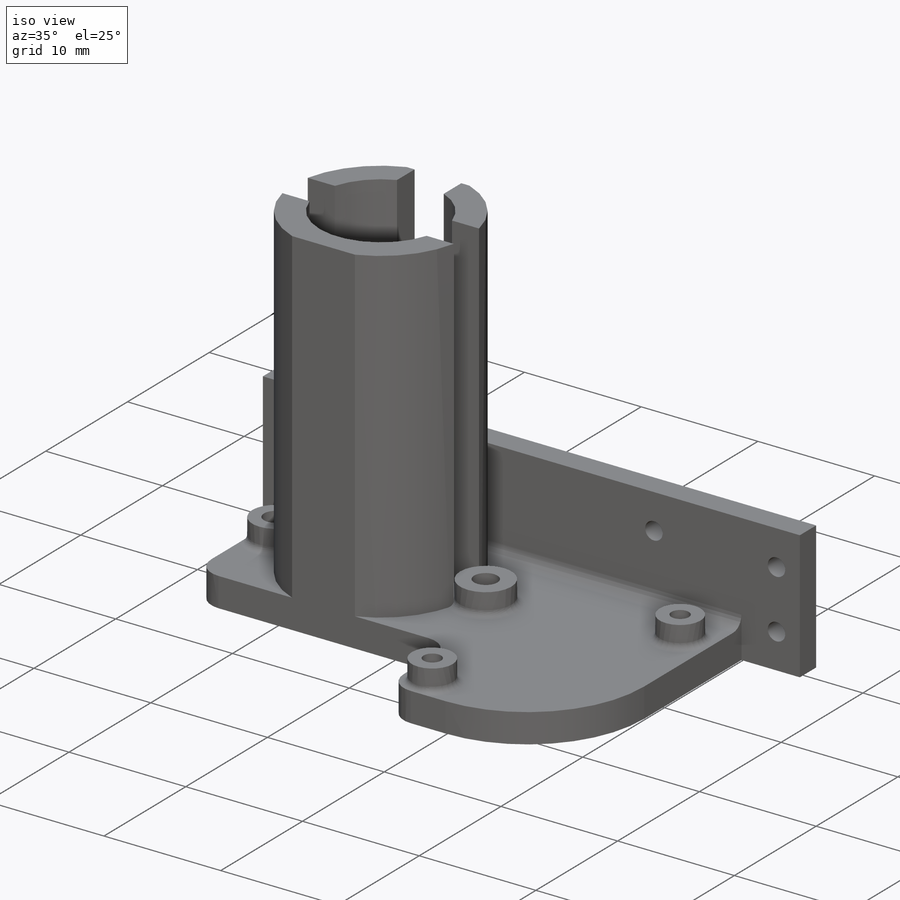
[diagram: iso view]
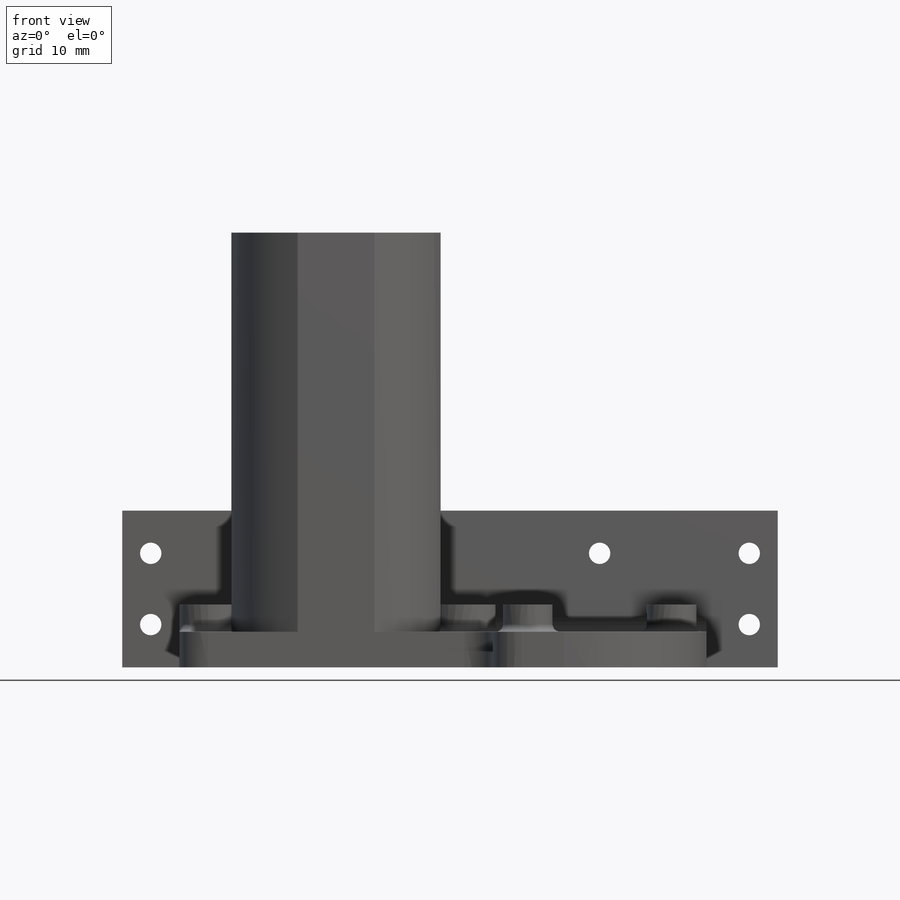
[diagram: front view]
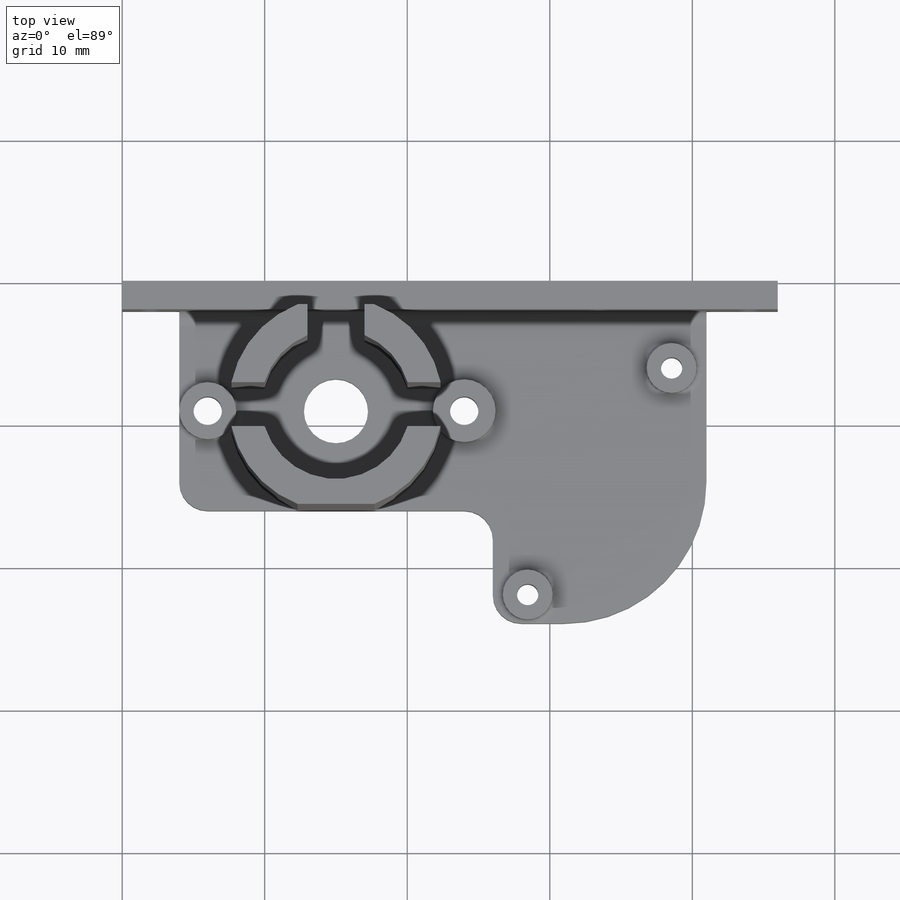
[diagram: top view]
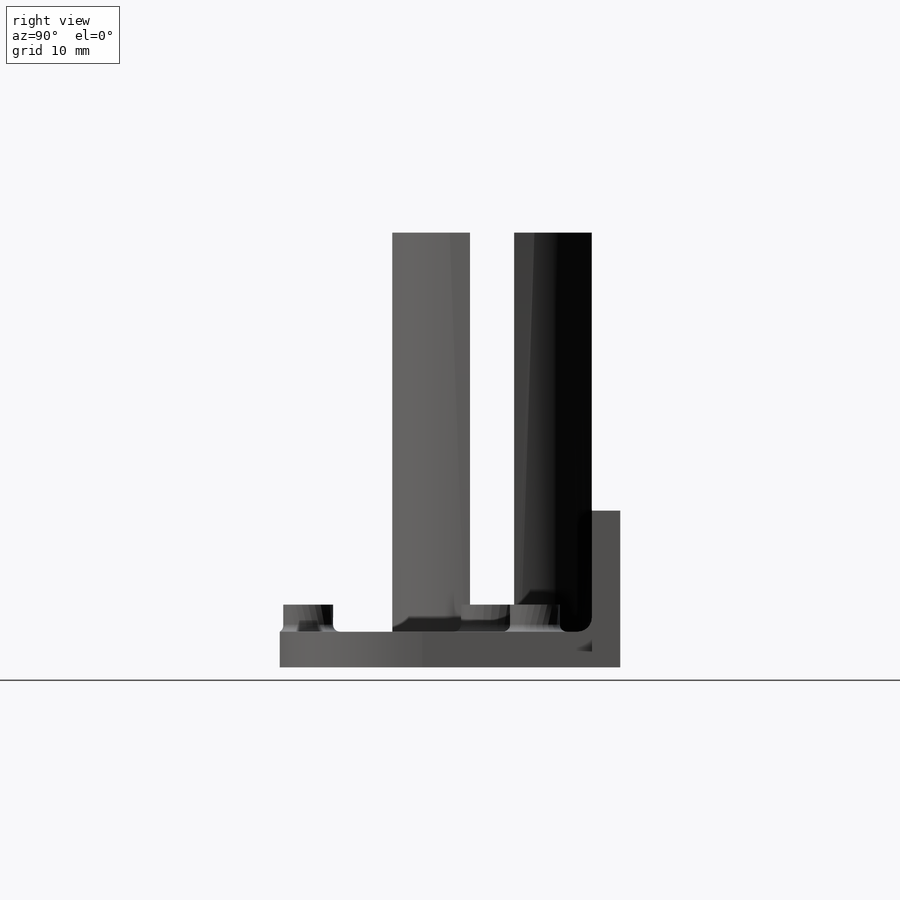
[diagram: right view]
SOLIDWORKS PART (.sldprt)
format: sldprt  version: not decoded by parser v0  size: 921,088 bytes
history: native  units: mm
features: sketch x13, extrude x4, fillet x4, plane x3, hole x3, cut_extrude x2, material x1 (+10 scaffold rows collapsed)
feature tree (40):
  scaffold x10  (default folders/planes/origin — collapsed)
  material  "Material <sin especificar>"
  plane  "Alzado"
  plane  "Planta"
  plane  "Vista lateral"
  sketch  "Croquis1"  dims[D1=11.0mm]
  extrude  "Saliente-Extruir1"  Depth=2mm
  sketch  "Croquis2"  dims[D1=2.5mm]
  extrude  "Saliente-Extruir2"  Depth=21.9mm
  sketch  "Croquis3"  dims[D1=22.0mm]
  cut_extrude  "Cortar-Extruir2"  [1 undecoded]
  sketch  "Croquis4"  dims[D1=2.0mm]
  extrude  "Saliente-Extruir3"  Depth=28mm
  sketch  "Croquis5"  dims[D1=0.75mm]
  cut_extrude  "Cortar-Extruir3"  [1 undecoded]
  sketch  "Croquis7"  dims[D1=9.0mm]
  extrude  "Saliente-Extruir4"  Depth=1.9mm
  hole  "Diámetro de taladro Ø2.0 (2)1"  Depth=4.40005mm  [1 undecoded]
  sketch  "Croquis3D1"
  sketch  "Croquis8"  dims[hole-wizard template sketch: 59 standard entries collapsed; hole parameters kept: c18.Diámetro de taladro hasta el siguiente=2.0mm c18.Profundidad de taladro hasta el siguiente=~4.40005mm]
  hole  "Diámetro de taladro Ø1.5 (1.5)1"  Depth=4.40005mm  [1 undecoded]
  sketch  "Croquis3D2"
  sketch  "Croquis9"  dims[hole-wizard template sketch: 59 standard entries collapsed; hole parameters kept: c18.Diámetro de taladro hasta el siguiente=1.5mm c18.Profundidad de taladro hasta el siguiente=~4.40005mm]
  sketch  "Croquis10"  dims[D1=10.5mm]
  hole  "Diámetro de taladro Ø1.5 (1.5)2"  Depth=2mm  [1 undecoded]
  sketch  "Croquis3D3"
  sketch  "Croquis11"  dims[hole-wizard template sketch: 59 standard entries collapsed; hole parameters kept: c18.Diámetro de taladro hasta el siguiente=1.5mm c18.Profundidad de taladro hasta el siguiente=2.0mm]
  fillet  "Redondeo1"  Radius=10mm
  fillet  "Redondeo2"  Radius=2mm
  fillet  "Redondeo3"  Radius=1mm
  fillet  "Redondeo4"  Radius=0.5mm
decode coverage: 21 of 26 modeling features carry decoded parameters
note: ~ marks probable driven/reference dimensions
note: 5 parameter values undecoded
summary: no parameter record found for 5 features
note: suppression state not decoded; provenance and decode notes live in map.json
